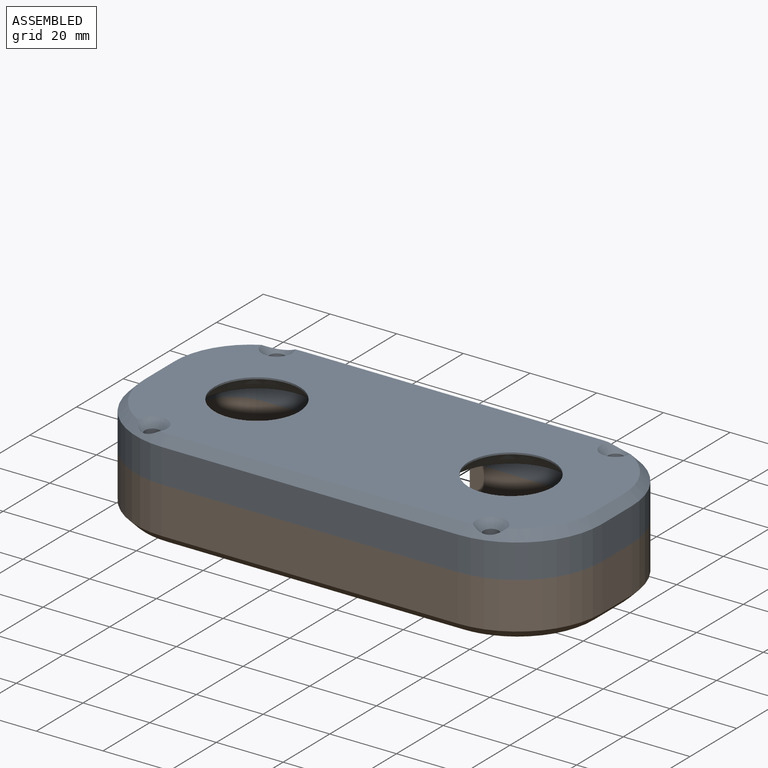
[diagram: assembled view]
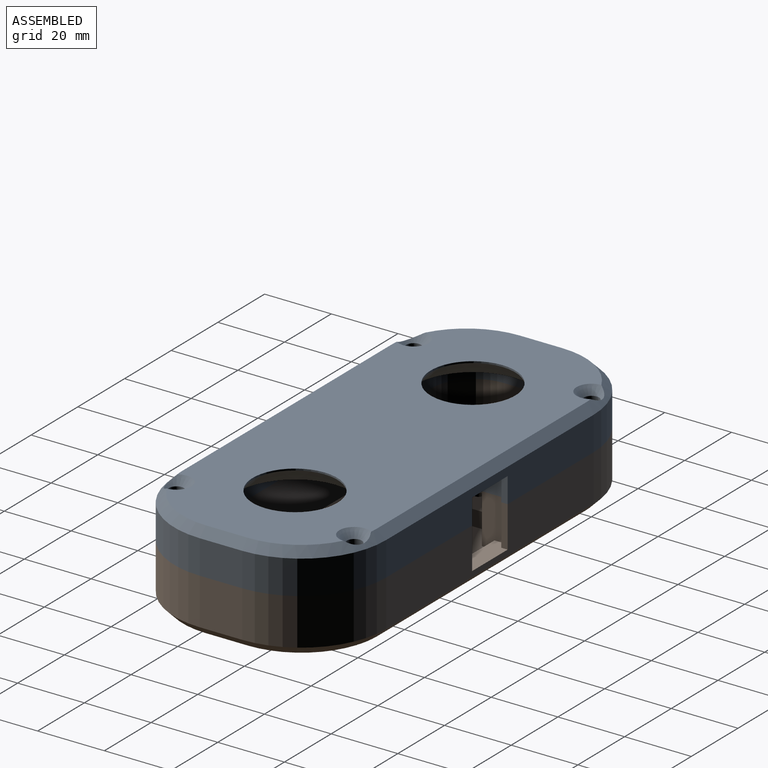
[diagram: assembled view, second angle]
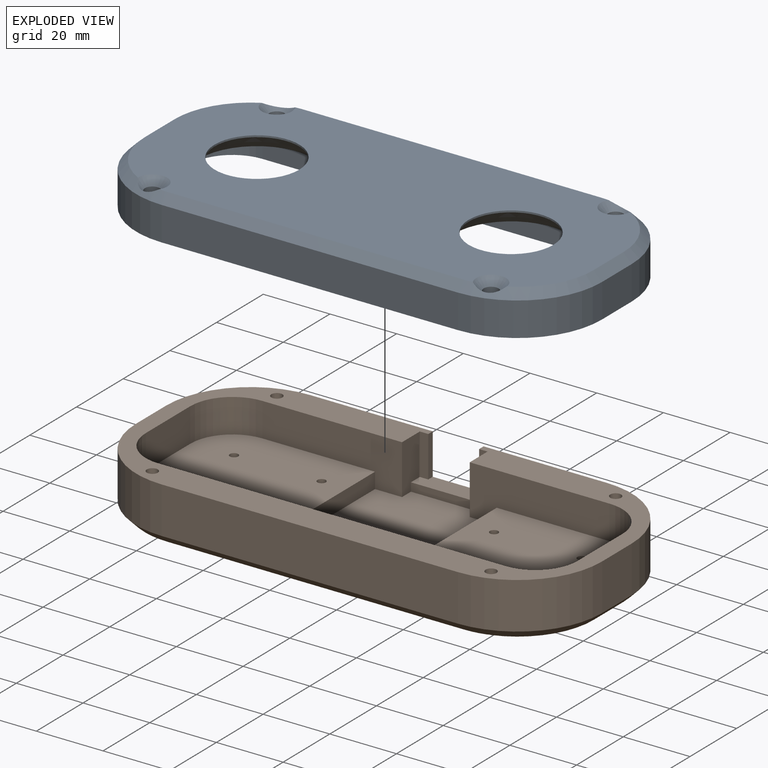
[diagram: exploded view]
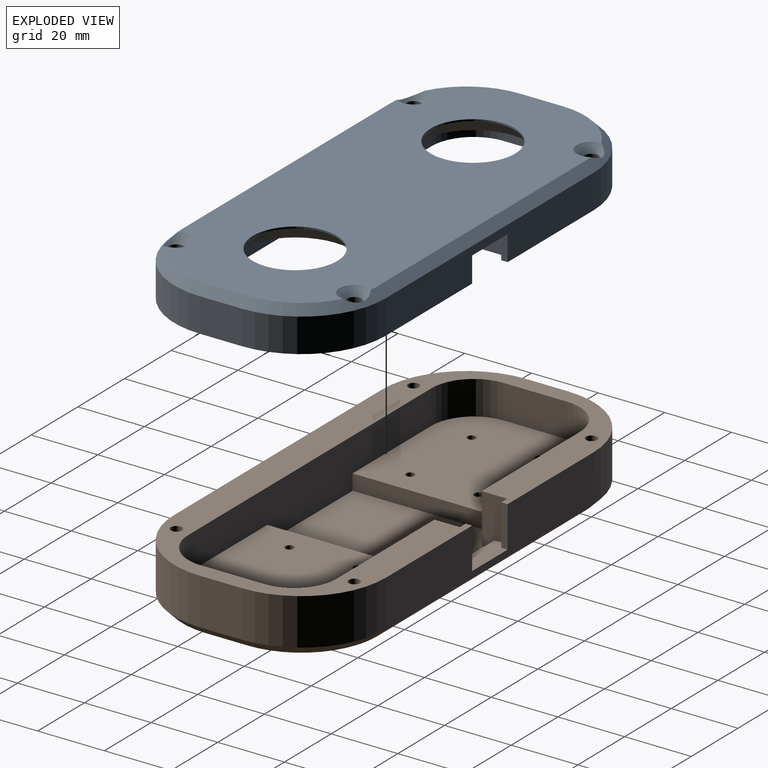
[diagram: exploded view, second angle]
ASSEMBLY  parts=2 mates=3
PART A: 46 faces, bbox 139.7x63.5x12.7 mm
  f0: plane 134.62x58.42mm, normal (0,0,1), area 6225.8mm2, adj f1,f2,f3,f4,f7,f8,f28,f29
  f1: cone r=22.86mm half-angle=45deg, axis (0,0,-1), area 124.1mm2, adj f0,f25,f28,f29,f45
  f2: cone r=22.86mm half-angle=45deg, axis (0,0,-1), area 124.1mm2, adj f0,f26,f28,f30,f43
  f3: cone r=22.86mm half-angle=45deg, axis (0,0,-1), area 124.1mm2, adj f0,f24,f29,f31,f41
  f4: cone r=22.86mm half-angle=45deg, axis (0,0,-1), area 124.1mm2, adj f0,f27,f30,f31,f39
  f5: plane 41.91x7.62mm, normal (0,1,0), area 319.4mm2, adj f6,f13,f20,f34
  f6: plane 139.7x63.5mm, normal (0,0,-1), area 2450.1mm2, adj f5,f9,f10,f11,f12,f14,f15,f16
  f7: cylinder r=12.7mm len=25.4mm, axis (0,0,1), area 40.5mm2, adj f0,f18
  f8: cylinder r=12.7mm len=25.4mm, axis (0,0,1), area 40.5mm2, adj f0,f19
  f9: plane 88.9x10.16mm, normal (0,1,0), area 903.2mm2, adj f6,f24,f27,f31
  f10: plane 12.7x10.16mm, normal (-1,0,0), area 129mm2, adj f6,f24,f25,f29
  f11: plane 88.9x10.16mm, normal (0,-1,0), area 787.1mm2, adj f6,f13,f25,f26,f28,f32,f37
  f12: plane 12.7x10.16mm, normal (1,0,0), area 129mm2, adj f6,f26,f27,f30
  f13: plane 129.54x53.98mm, normal (0,0,-1), area 3929.1mm2, adj f5,f11,f14,f15,f16,f17,f18,f19
  f14: plane 41.91x7.62mm, normal (0,1,0), area 319.4mm2, adj f6,f13,f23,f35
  f15: plane 19.05x7.62mm, normal (1,0,0), area 145.2mm2, adj f6,f13,f20,f21
  f16: plane 104.14x7.62mm, normal (0,-1,0), area 793.5mm2, adj f6,f13,f21,f22
  f17: plane 19.05x7.62mm, normal (-1,0,0), area 145.2mm2, adj f6,f13,f22,f23
  f18: cone r=12.7mm half-angle=45deg, axis (0,0,-1), area 608.8mm2, adj f7,f13
  f19: cone r=17.27mm half-angle=45deg, axis (0,0,-1), area 608.8mm2, adj f8,f13
  f20: cylinder r=12.7mm len=12.7mm, axis (0,0,-1), area 152mm2, adj f5,f6,f13,f15
  f21: cylinder r=12.7mm len=12.7mm, axis (0,0,1), area 152mm2, adj f6,f13,f15,f16
  f22: cylinder r=12.7mm len=12.7mm, axis (0,0,-1), area 152mm2, adj f6,f13,f16,f17
  f23: cylinder r=12.7mm len=12.7mm, axis (0,0,1), area 152mm2, adj f6,f13,f14,f17
  f24: cylinder r=25.4mm len=25.4mm, axis (0,0,1), area 405.4mm2, adj f3,f6,f9,f10
  f25: cylinder r=25.4mm len=25.4mm, axis (0,0,-1), area 405.4mm2, adj f1,f6,f10,f11
  f26: cylinder r=25.4mm len=25.4mm, axis (0,0,1), area 405.4mm2, adj f2,f6,f11,f12
  f27: cylinder r=25.4mm len=25.4mm, axis (0,0,-1), area 405.4mm2, adj f4,f6,f9,f12
  f28: plane 88.9x2.54mm, normal (0,-0.71,0.71), area 319.3mm2, adj f0,f1,f2,f11
  f29: plane 12.7x2.54mm, normal (-0.71,0,0.71), area 45.6mm2, adj f0,f1,f3,f10
  f30: plane 12.7x2.54mm, normal (0.71,0,0.71), area 45.6mm2, adj f0,f2,f4,f12
  f31: plane 88.9x2.54mm, normal (0,0.71,0.71), area 319.3mm2, adj f0,f3,f4,f9
  f32: plane 7.62x1.91mm, normal (1,0,0), area 14.5mm2, adj f6,f11,f13,f33
  f33: plane 7.62x2.54mm, normal (0,1,0), area 19.4mm2, adj f6,f13,f32,f34
  f34: plane 7.62x7.62mm, normal (1,0,0), area 58.1mm2, adj f5,f6,f13,f33
  f35: plane 7.62x7.62mm, normal (-1,0,0), area 58.1mm2, adj f6,f13,f14,f36
  f36: plane 7.62x2.54mm, normal (0,1,0), area 19.4mm2, adj f6,f13,f35,f37
  f37: plane 7.62x1.91mm, normal (-1,0,0), area 14.5mm2, adj f6,f11,f13,f36
  f38: cylinder r=2.25mm len=10.47mm, axis (0,0,1), area 148mm2, adj f6,f39
  f39: cone r=2.25mm half-angle=45deg, axis (0,0,1), area 52.1mm2, adj f0,f4,f38
  f40: cylinder r=2.25mm len=10.47mm, axis (0,0,1), area 148mm2, adj f6,f41
  f41: cone r=2.25mm half-angle=45deg, axis (0,0,1), area 52.1mm2, adj f0,f3,f40
  f42: cylinder r=2.25mm len=10.47mm, axis (0,0,1), area 148mm2, adj f6,f43
  f43: cone r=2.25mm half-angle=45deg, axis (0,0,1), area 52.1mm2, adj f0,f2,f42
  f44: cylinder r=2.25mm len=10.47mm, axis (0,0,1), area 148mm2, adj f6,f45
  f45: cone r=2.25mm half-angle=45deg, axis (0,0,1), area 52.1mm2, adj f0,f1,f44
PART B: 52 faces, bbox 139.7x63.5x16.5 mm
  f0: cone r=22.86mm half-angle=45deg, axis (0,0,1), area 136.1mm2, adj f12,f41,f44,f45,f51
  f1: cone r=22.86mm half-angle=45deg, axis (0,0,1), area 136.1mm2, adj f12,f40,f44,f46,f50
  f2: cone r=22.86mm half-angle=45deg, axis (0,0,1), area 136.1mm2, adj f12,f42,f45,f47,f49
  f3: cone r=22.86mm half-angle=45deg, axis (0,0,1), area 136.1mm2, adj f12,f43,f46,f47,f48
  f4: plane 46.51x44.45mm, normal (0,0,1), area 1978.6mm2, adj f13,f15,f16,f19,f20,f21,f25,f33
  f5: plane 20.32x5.72mm, normal (0,0,1), area 106.5mm2, adj f7,f26,f27,f28,f29,f30,f31,f34
  f6: plane 41.91x14.86mm, normal (0,-1,0), area 463.9mm2, adj f8,f17,f28,f32,f35,f36
  f7: plane 88.9x13.97mm, normal (0,1,0), area 1054.2mm2, adj f5,f8,f26,f31,f40,f43,f46
  f8: plane 139.7x63.5mm, normal (0,0,1), area 2479.5mm2, adj f6,f7,f9,f10,f11,f13,f14,f15
  f9: plane 13.97x12.7mm, normal (-1,0,0), area 177.4mm2, adj f8,f40,f41,f44
  f10: plane 88.9x13.97mm, normal (0,-1,0), area 1241.9mm2, adj f8,f41,f42,f45
  f11: plane 13.97x12.7mm, normal (1,0,0), area 177.4mm2, adj f8,f42,f43,f47
  f12: plane 134.62x58.42mm, normal (0,0,-1), area 7342.7mm2, adj f0,f1,f2,f3,f18,f19,f20,f21
  f13: plane 41.91x14.86mm, normal (0,-1,0), area 463.9mm2, adj f4,f8,f29,f33,f35,f39
  f14: plane 19.05x10.16mm, normal (1,0,0), area 193.5mm2, adj f8,f17,f36,f37
  f15: plane 104.14x14.86mm, normal (0,1,0), area 1229.6mm2, adj f4,f8,f17,f32,f33,f35,f37,f38
  f16: plane 19.05x10.16mm, normal (-1,0,0), area 193.5mm2, adj f4,f8,f38,f39
  f17: plane 46.51x44.45mm, normal (0,0,1), area 1978.6mm2, adj f6,f14,f15,f18,f22,f23,f24,f32
  f18: cylinder r=1.25mm len=6.35mm, axis (0,0,1), area 49.9mm2, adj f12,f17
  f19: cylinder r=1.25mm len=6.35mm, axis (0,0,1), area 49.9mm2, adj f4,f12
  f20: cylinder r=1.25mm len=6.35mm, axis (0,0,1), area 49.9mm2, adj f4,f12
  f21: cylinder r=1.25mm len=6.35mm, axis (0,0,1), area 49.9mm2, adj f4,f12
  f22: cylinder r=1.25mm len=6.35mm, axis (0,0,1), area 49.9mm2, adj f12,f17
  f23: cylinder r=1.25mm len=6.35mm, axis (0,0,1), area 49.9mm2, adj f12,f17
  f24: cylinder r=1.25mm len=6.35mm, axis (0,0,1), area 49.9mm2, adj f12,f17
  f25: cylinder r=1.25mm len=6.35mm, axis (0,0,1), area 49.9mm2, adj f4,f12
  f26: plane 12.32x1.91mm, normal (1,0,0), area 23.5mm2, adj f5,f7,f8,f27
  f27: plane 12.32x2.54mm, normal (0,-1,0), area 31.3mm2, adj f5,f8,f26,f28
  f28: plane 14.86x7.62mm, normal (1,0,0), area 103.5mm2, adj f5,f6,f8,f27,f34,f35
  f29: plane 14.86x7.62mm, normal (-1,0,0), area 103.5mm2, adj f5,f8,f13,f30,f34,f35
  f30: plane 12.32x2.54mm, normal (0,-1,0), area 31.3mm2, adj f5,f8,f29,f31
  f31: plane 12.32x1.91mm, normal (-1,0,0), area 23.5mm2, adj f5,f7,f8,f30
  f32: plane 44.45x4.7mm, normal (1,0,0), area 208.9mm2, adj f6,f15,f17,f35
  f33: plane 44.45x4.7mm, normal (-1,0,0), area 208.9mm2, adj f4,f13,f15,f35
  f34: plane 20.32x2.54mm, normal (0,-1,0), area 51.6mm2, adj f5,f28,f29,f35
  f35: plane 48.26x36.51mm, normal (0,0,1), area 1700.5mm2, adj f6,f13,f15,f28,f29,f32,f33,f34
  f36: cylinder r=12.7mm len=12.7mm, axis (0,0,1), area 202.7mm2, adj f6,f8,f14,f17
  f37: cylinder r=12.7mm len=12.7mm, axis (0,0,-1), area 202.7mm2, adj f8,f14,f15,f17
  f38: cylinder r=12.7mm len=12.7mm, axis (0,0,1), area 202.7mm2, adj f4,f8,f15,f16
  f39: cylinder r=12.7mm len=12.7mm, axis (0,0,-1), area 202.7mm2, adj f4,f8,f13,f16
  f40: cylinder r=25.4mm len=25.4mm, axis (0,0,1), area 557.4mm2, adj f1,f7,f8,f9
  f41: cylinder r=25.4mm len=25.4mm, axis (0,0,-1), area 557.4mm2, adj f0,f8,f9,f10
  f42: cylinder r=25.4mm len=25.4mm, axis (0,0,1), area 557.4mm2, adj f2,f8,f10,f11
  f43: cylinder r=25.4mm len=25.4mm, axis (0,0,-1), area 557.4mm2, adj f3,f7,f8,f11
  f44: plane 12.7x2.54mm, normal (-0.71,0,-0.71), area 45.6mm2, adj f0,f1,f9,f12
  f45: plane 88.9x2.54mm, normal (0,-0.71,-0.71), area 319.3mm2, adj f0,f2,f10,f12
  f46: plane 88.9x2.54mm, normal (0,0.71,-0.71), area 319.3mm2, adj f1,f3,f7,f12
  f47: plane 12.7x2.54mm, normal (0.71,0,-0.71), area 45.6mm2, adj f2,f3,f11,f12
  f48: cylinder r=1.65mm len=16.51mm, axis (0,0,1), area 171.1mm2, adj f3,f8,f12
  f49: cylinder r=1.65mm len=16.51mm, axis (0,0,1), area 171.1mm2, adj f2,f8,f12
  f50: cylinder r=1.65mm len=16.51mm, axis (0,0,1), area 171.1mm2, adj f1,f8,f12
  f51: cylinder r=1.65mm len=16.51mm, axis (0,0,1), area 171.1mm2, adj f0,f8,f12
PLACE A rot(axis=(0,0,1),180deg) t=(0.24,0.01,14.42)mm
PLACE B t=(0.24,0.01,-0.18)mm fixed
MATE planar B.f8 <-> A.f6  axis (0,0,1) through (0.24,-1.97,8.07)mm
MATE planar B.f9 <-> A.f12  axis (-1,0,0) through (-69.61,0.01,1.09)mm
MATE planar A.f9 <-> B.f10  axis (0,-1,0) through (0.24,-31.74,13.15)mm
